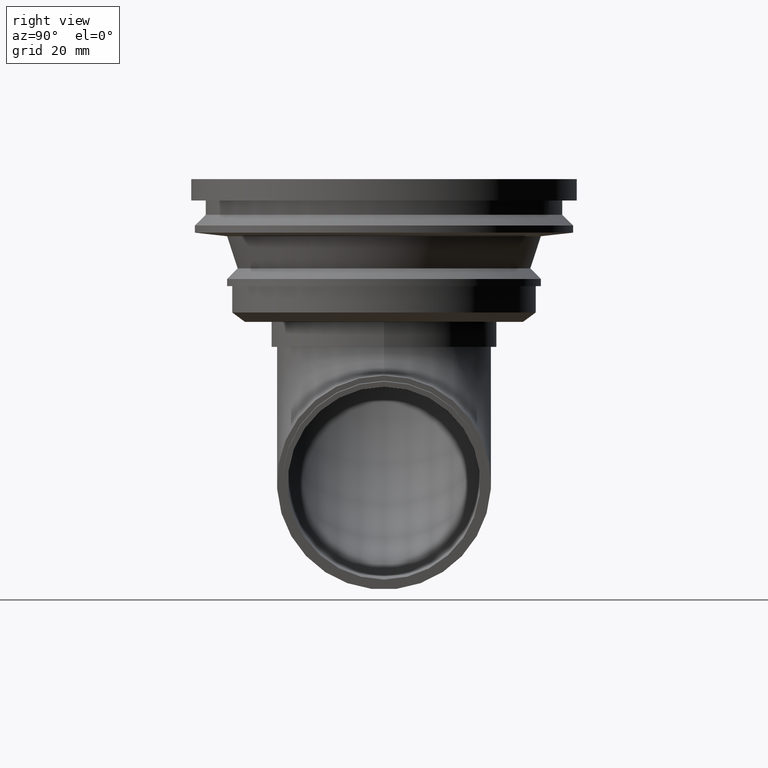
[diagram: clean part render]
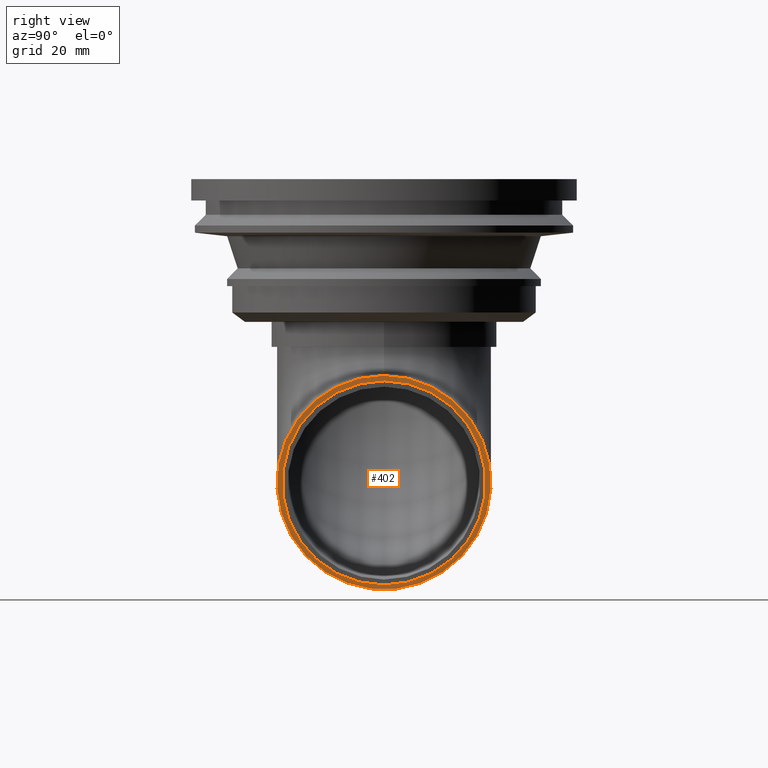
[diagram: same view with one face highlighted and labeled with its STEP entity id]
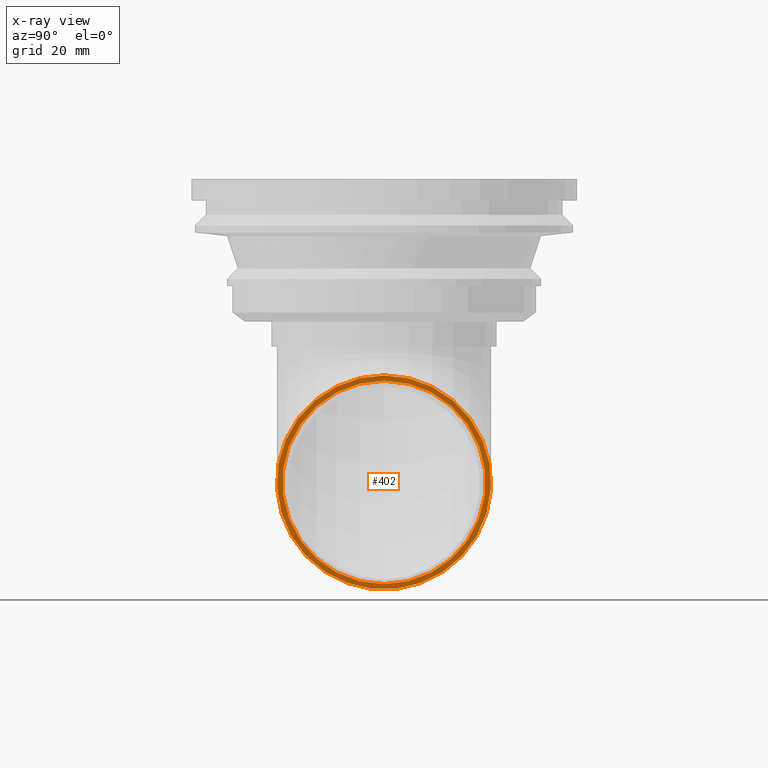
[diagram: x-ray of the same camera — body ghosted, the highlighted face saturated]
A machine part, right view. The second image highlights one B-rep face of the part: STEP entity #402.
The next image is the same camera in x-ray: the body ghosted, the highlighted face saturated — about 4% of this face is hidden behind the body in this view.
In plain terms, the highlighted planar face has unit normal (1, 0, -0.0052).
Its self-contained STEP definition (entity closure, byte-faithful):
#106=ORIENTED_EDGE('',*,*,#145,.T.);
#107=ORIENTED_EDGE('',*,*,#144,.F.);
#144=EDGE_CURVE('',#179,#179,#214,.T.);
#145=EDGE_CURVE('',#180,#180,#215,.T.);
#179=VERTEX_POINT('',#728);
#180=VERTEX_POINT('',#731);
#214=CIRCLE('',#482,30.);
#215=CIRCLE('',#484,28.5);
#281=EDGE_LOOP('',(#106));
#282=EDGE_LOOP('',(#107));
#351=FACE_BOUND('',#281,.T.);
#352=FACE_BOUND('',#282,.T.);
#368=PLANE('',#483);
#402=ADVANCED_FACE('',(#351,#352),#368,.T.);
#482=AXIS2_PLACEMENT_3D('',#727,#618,#619);
#483=AXIS2_PLACEMENT_3D('',#729,#620,#621);
#484=AXIS2_PLACEMENT_3D('',#730,#622,#623);
#618=DIRECTION('',(-0.999986292247427,0.,0.00523596383141975));
#619=DIRECTION('',(0.00523596383141975,0.,0.999986292247427));
#620=DIRECTION('',(0.999986292247427,0.,-0.00523596383141975));
#621=DIRECTION('',(-0.00523596383141975,0.,-0.999986292247427));
#622=DIRECTION('',(-0.999986292247427,0.,0.00523596383141975));
#623=DIRECTION('',(0.00523596383141975,0.,0.999986292247427));
#727=CARTESIAN_POINT('',(40.8009922511483,0.,-85.0151869968965));
#728=CARTESIAN_POINT('',(40.9580711660909,0.,-55.0155982294737));
#729=CARTESIAN_POINT('',(40.9580711660909,0.,-55.0155982294737));
#730=CARTESIAN_POINT('',(40.8009922511483,0.,-85.0151869968965));
#731=CARTESIAN_POINT('',(40.9502172203438,0.,-56.5155776678448));